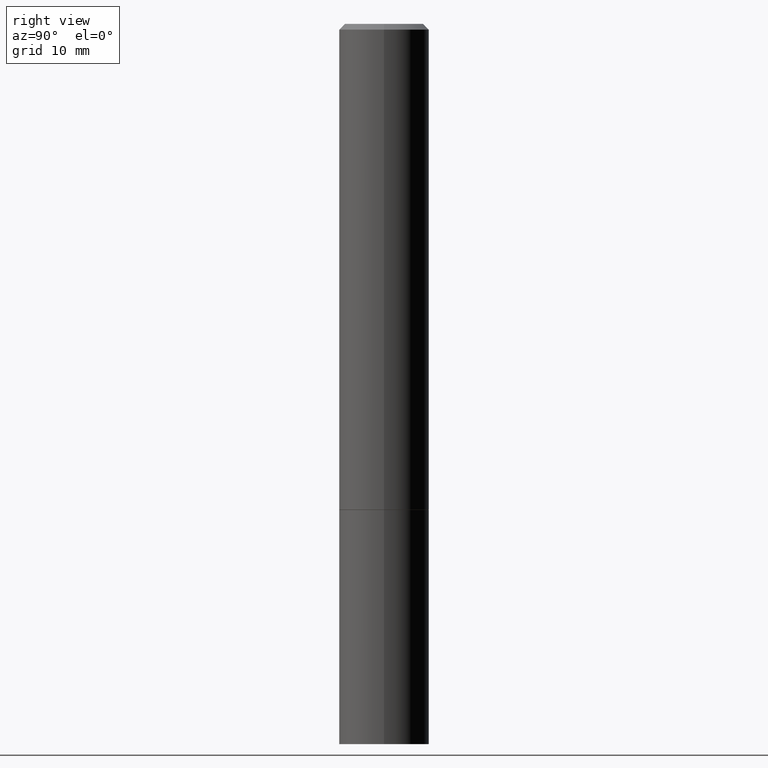
[diagram: clean part render]
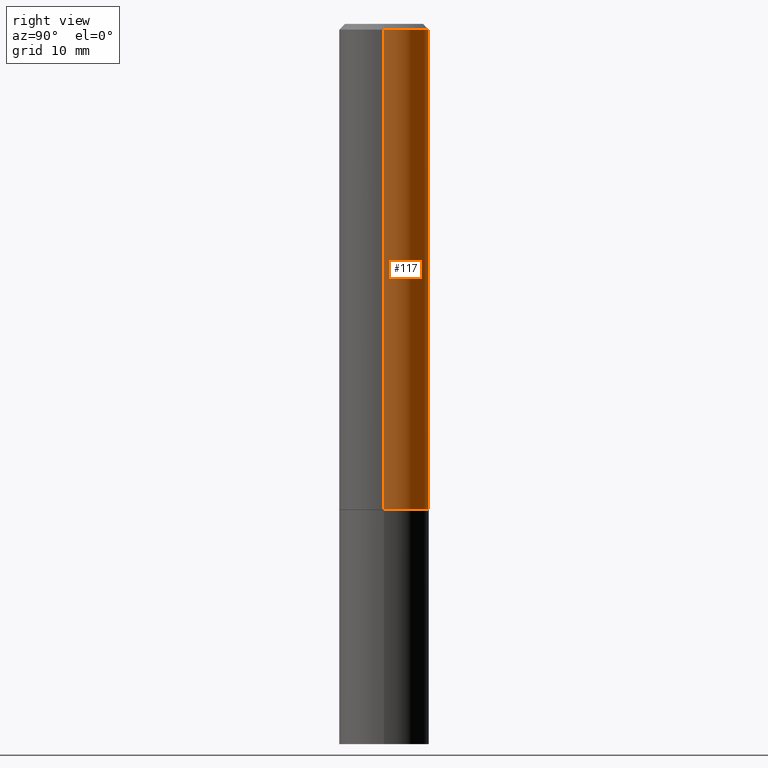
[diagram: same view with one face highlighted and labeled with its STEP entity id]
A machine part, right view. The second image highlights one B-rep face of the part: STEP entity #117.
In plain terms, the highlighted cylindrical surface (partial cylindrical patch) has radius 3.9687 mm, axis along (-0, 0, 1).
Its self-contained STEP definition (entity closure, byte-faithful):
#7 = CARTESIAN_POINT ( 'NONE',  ( -0.1562499999999999167, 1.110223024625155949E-15, -7.685836078523285555E-30 ) ) ;
#8 = VECTOR ( 'NONE', #37, 39.37007874015748143 ) ;
#11 = ORIENTED_EDGE ( 'NONE', *, *, #129, .F. ) ;
#12 = CARTESIAN_POINT ( 'NONE',  ( 0.1562499999999999167, -1.091087918388478385E-15, 7.619026212181144772E-30 ) ) ;
#27 = CARTESIAN_POINT ( 'NONE',  ( 0.1562500000000000000, -6.979471196347444214E-15, -1.686499999999999888 ) ) ;
#28 = AXIS2_PLACEMENT_3D ( 'NONE', #171, #64, #144 ) ;
#31 = CYLINDRICAL_SURFACE ( 'NONE', #289, 0.1562499999999999167 ) ;
#37 = DIRECTION ( 'NONE',  ( -2.445468806185136877E-29, 3.491481338843145188E-15, 1.000000000000000000 ) ) ;
#47 = VERTEX_POINT ( 'NONE', #113 ) ;
#64 = DIRECTION ( 'NONE',  ( -2.445468806185136597E-29, 3.491481338843145583E-15, 1.000000000000000000 ) ) ;
#67 = ORIENTED_EDGE ( 'NONE', *, *, #246, .F. ) ;
#72 = VERTEX_POINT ( 'NONE', #27 ) ;
#80 = VECTOR ( 'NONE', #319, 39.37007874015748143 ) ;
#85 = EDGE_CURVE ( 'NONE', #72, #243, #87, .T. ) ;
#87 = CIRCLE ( 'NONE', #153, 0.1562500000000000000 ) ;
#111 = EDGE_LOOP ( 'NONE', ( #125, #328, #11, #67 ) ) ;
#113 = CARTESIAN_POINT ( 'NONE',  ( -0.1562499999999998057, 1.021258291611614692E-15, -0.02000000000000003511 ) ) ;
#117 = ADVANCED_FACE ( 'NONE', ( #337 ), #31, .T. ) ;
#125 = ORIENTED_EDGE ( 'NONE', *, *, #85, .T. ) ;
#129 = EDGE_CURVE ( 'NONE', #278, #47, #237, .T. ) ;
#131 = LINE ( 'NONE', #12, #8 ) ;
#142 = CARTESIAN_POINT ( 'NONE',  ( 4.124283141631232404E-29, -5.888383277958965040E-15, -1.686499999999999888 ) ) ;
#144 = DIRECTION ( 'NONE',  ( 1.000000000000000000, -6.982962677686265133E-15, 0.000000000000000000 ) ) ;
#153 = AXIS2_PLACEMENT_3D ( 'NONE', #142, #251, #229 ) ;
#171 = CARTESIAN_POINT ( 'NONE',  ( 4.890937612370281041E-31, -6.982962677686302702E-17, -0.02000000000000003511 ) ) ;
#196 = DIRECTION ( 'NONE',  ( -2.445468806185136597E-29, 3.491481338843145583E-15, 1.000000000000000000 ) ) ;
#229 = DIRECTION ( 'NONE',  ( 1.000000000000000000, -6.982962677686269077E-15, 0.000000000000000000 ) ) ;
#237 = CIRCLE ( 'NONE', #28, 0.1562499999999998057 ) ;
#243 = VERTEX_POINT ( 'NONE', #342 ) ;
#246 = EDGE_CURVE ( 'NONE', #72, #278, #131, .T. ) ;
#251 = DIRECTION ( 'NONE',  ( -2.445468806185136597E-29, 3.491481338843145583E-15, 1.000000000000000000 ) ) ;
#253 = CARTESIAN_POINT ( 'NONE',  ( 0.000000000000000000, 0.000000000000000000, 0.000000000000000000 ) ) ;
#263 = LINE ( 'NONE', #7, #80 ) ;
#278 = VERTEX_POINT ( 'NONE', #292 ) ;
#289 = AXIS2_PLACEMENT_3D ( 'NONE', #253, #196, #312 ) ;
#292 = CARTESIAN_POINT ( 'NONE',  ( 0.1562499999999998057, -1.141782438928663330E-15, -0.02000000000000003511 ) ) ;
#312 = DIRECTION ( 'NONE',  ( 1.000000000000000000, -6.982962677686265133E-15, 4.876176775795935232E-29 ) ) ;
#319 = DIRECTION ( 'NONE',  ( -2.445468806185136877E-29, 3.491481338843145188E-15, 1.000000000000000000 ) ) ;
#328 = ORIENTED_EDGE ( 'NONE', *, *, #351, .T. ) ;
#337 = FACE_OUTER_BOUND ( 'NONE', #111, .T. ) ;
#342 = CARTESIAN_POINT ( 'NONE',  ( -0.1562500000000000000, -1.868883427742755657E-15, -1.686499999999999888 ) ) ;
#351 = EDGE_CURVE ( 'NONE', #243, #47, #263, .T. ) ;